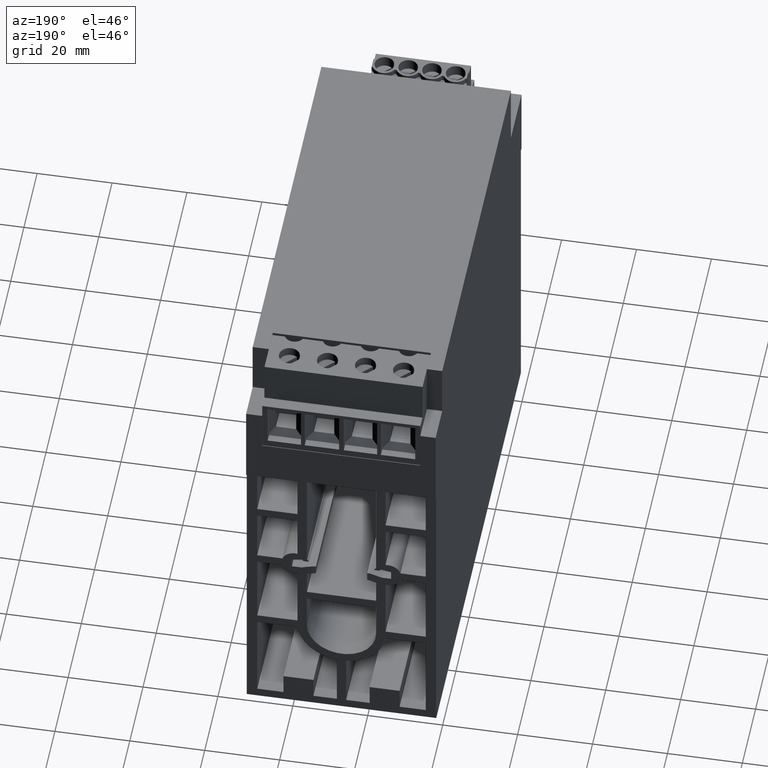
[diagram: clean part render]
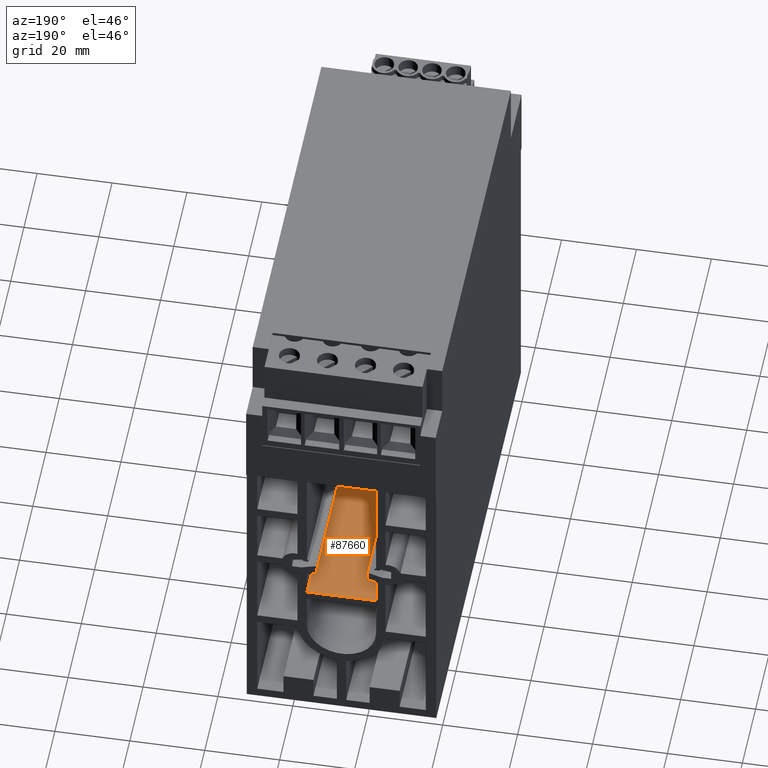
[diagram: same view with one face highlighted and labeled with its STEP entity id]
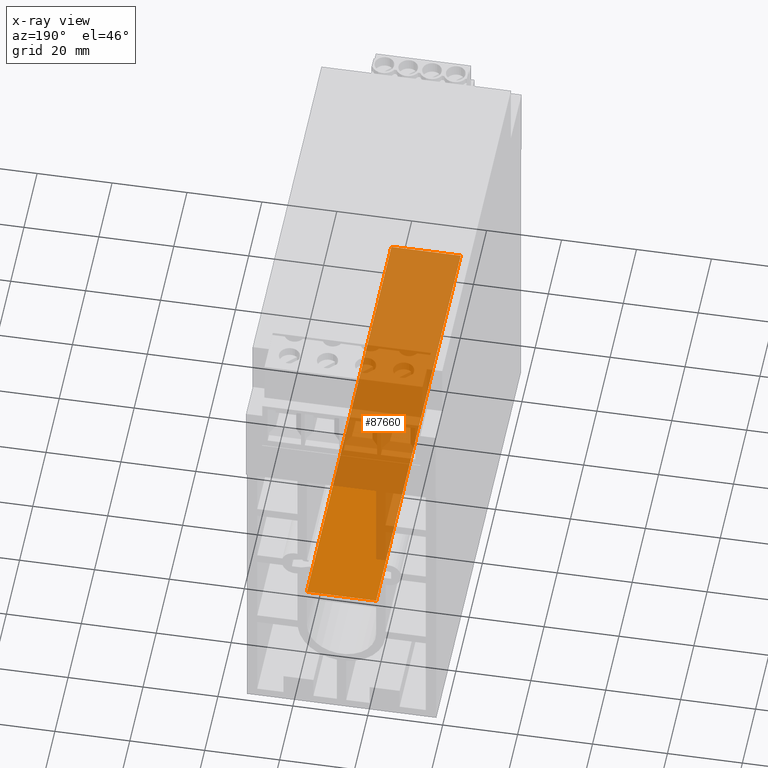
[diagram: x-ray of the same camera — body ghosted, the highlighted face saturated]
A machine part, auxiliary view. The second image highlights one B-rep face of the part: STEP entity #87660.
The next image is the same camera in x-ray: the body ghosted, the highlighted face saturated — about 74% of this face is hidden behind the body in this view.
In plain terms, the highlighted planar face has unit normal (0, 0, 1).
Its self-contained STEP definition (entity closure, byte-faithful):
#9040=CARTESIAN_POINT('',(-8.95,63.5,21.35));
#9050=VERTEX_POINT('',#9040);
#9080=CARTESIAN_POINT('',(0.299999999999997,63.5,21.35));
#9090=DIRECTION('',(-1.,0.,0.));
#9100=VECTOR('',#9090,1.);
#9110=LINE('',#9080,#9100);
#9120=CARTESIAN_POINT('',(9.55,63.5,21.35));
#9130=VERTEX_POINT('',#9120);
#9140=EDGE_CURVE('',#9130,#9050,#9110,.T.);
#15910=CARTESIAN_POINT('',(9.55,63.5,-106.65));
#15920=VERTEX_POINT('',#15910);
#15950=CARTESIAN_POINT('',(0.299999999999997,63.5,-106.65));
#15960=DIRECTION('',(1.,0.,0.));
#15970=VECTOR('',#15960,1.);
#15980=LINE('',#15950,#15970);
#15990=CARTESIAN_POINT('',(-8.95,63.5,-106.65));
#16000=VERTEX_POINT('',#15990);
#16010=EDGE_CURVE('',#16000,#15920,#15980,.T.);
#87330=CARTESIAN_POINT('',(-8.95,63.5,-0.650000000000006));
#87340=DIRECTION('',(0.,0.,-1.));
#87350=VECTOR('',#87340,1.);
#87360=LINE('',#87330,#87350);
#87370=EDGE_CURVE('',#9050,#16000,#87360,.T.);
#87500=CARTESIAN_POINT('',(-9.413823,63.5,21.426323));
#87510=DIRECTION('',(-0.,1.,0.));
#87520=DIRECTION('',(1.,0.,0.));
#87530=AXIS2_PLACEMENT_3D('',#87500,#87510,#87520);
#87540=PLANE('',#87530);
#87550=ORIENTED_EDGE('',*,*,#87370,.F.);
#87560=ORIENTED_EDGE('',*,*,#16010,.F.);
#87570=CARTESIAN_POINT('',(9.55,63.5,-0.650000000000006));
#87580=DIRECTION('',(0.,0.,-1.));
#87590=VECTOR('',#87580,1.);
#87600=LINE('',#87570,#87590);
#87610=EDGE_CURVE('',#9130,#15920,#87600,.T.);
#87620=ORIENTED_EDGE('',*,*,#87610,.T.);
#87630=ORIENTED_EDGE('',*,*,#9140,.F.);
#87640=EDGE_LOOP('',(#87630,#87620,#87560,#87550));
#87650=FACE_OUTER_BOUND('',#87640,.T.);
#87660=ADVANCED_FACE('',(#87650),#87540,.T.);